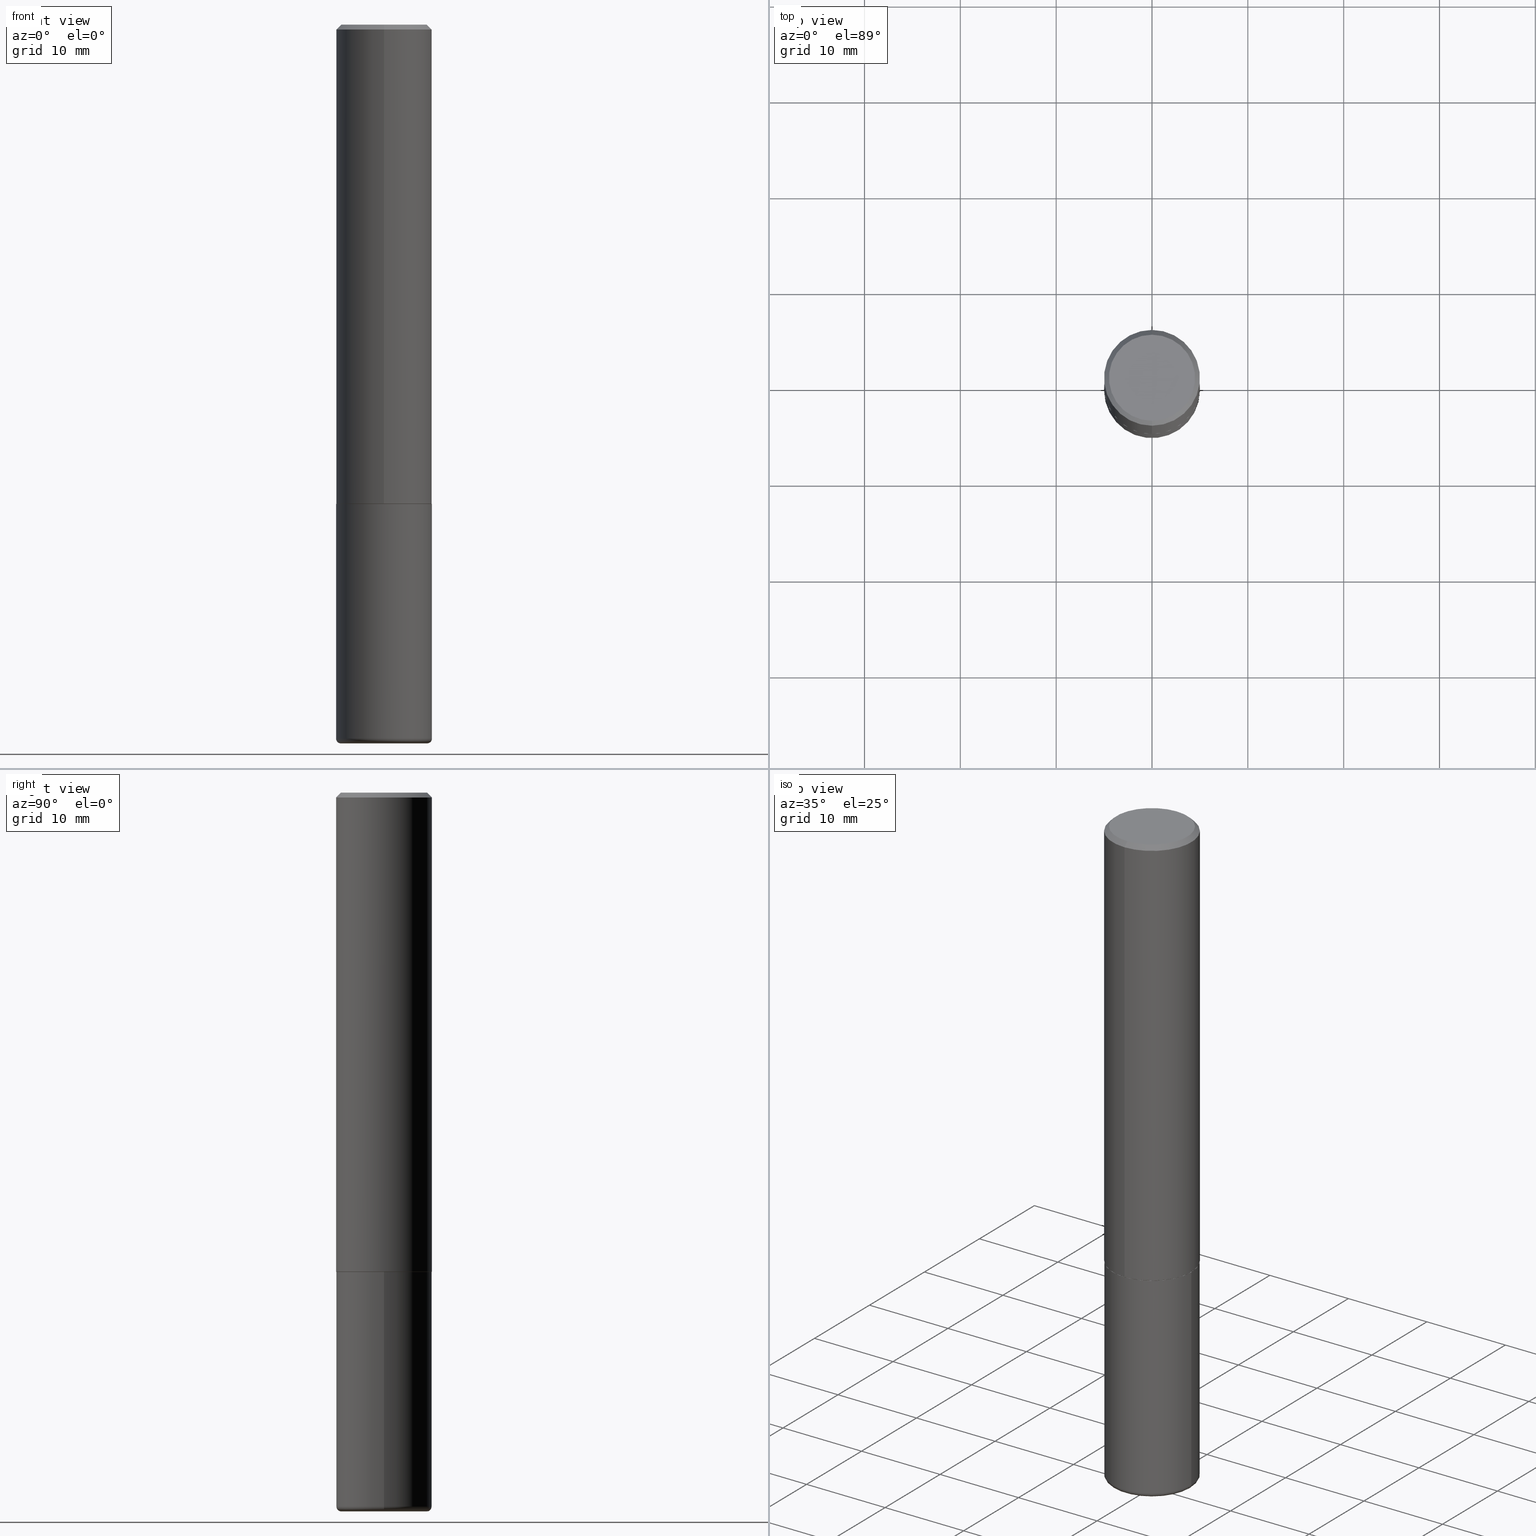
[diagram: canonical four-view strip — front | top / right | iso, engineering-drawing reading convention]
A machine part, canonical four-view strip (front | top / right | iso — engineering-drawing reading convention). The complete STEP part file that produces these views, byte-faithful:
ISO-10303-21;
HEADER;
FILE_DESCRIPTION (( 'STEP AP203' ),
    '1' );
FILE_NAME ('74402.STEP',
    '2024-03-06T15:11:28',
    ( '' ),
    ( '' ),
    'SwSTEP 2.0',
    'SolidWorks 2023',
    '' );
FILE_SCHEMA (( 'CONFIG_CONTROL_DESIGN' ));
ENDSEC;

DATA;
#1 = DIRECTION ( 'NONE',  ( -2.445468806185136597E-29, 3.491481338843145583E-15, 1.000000000000000000 ) ) ;
#2 =( NAMED_UNIT ( * ) SI_UNIT ( $, .STERADIAN. ) SOLID_ANGLE_UNIT ( ) );
#3 =( CONVERSION_BASED_UNIT ( 'INCH', #295 ) LENGTH_UNIT ( ) NAMED_UNIT ( #296 ) );
#4 = AXIS2_PLACEMENT_3D ( 'NONE', #81, #390, #257 ) ;
#5 = EDGE_CURVE ( 'NONE', #101, #399, #82, .T. ) ;
#6 = EDGE_LOOP ( 'NONE', ( #145, #100, #98, #329 ) ) ;
#7 = FACE_OUTER_BOUND ( 'NONE', #332, .T. ) ;
#8 = ORIENTED_EDGE ( 'NONE', *, *, #24, .T. ) ;
#9 = ORIENTED_EDGE ( 'NONE', *, *, #129, .T. ) ;
#10 = AXIS2_PLACEMENT_3D ( 'NONE', #293, #66, #96 ) ;
#11 = APPLICATION_CONTEXT ( 'configuration controlled 3d designs of mechanical parts and assemblies' ) ;
#12 = EDGE_LOOP ( 'NONE', ( #75, #366, #115, #410 ) ) ;
#13 = EDGE_CURVE ( 'NONE', #89, #101, #104, .T. ) ;
#14 = VECTOR ( 'NONE', #271, 39.37007874015748143 ) ;
#15 = AXIS2_PLACEMENT_3D ( 'NONE', #359, #323, #33 ) ;
#16 = ORIENTED_EDGE ( 'NONE', *, *, #247, .T. ) ;
#17 = ORIENTED_EDGE ( 'NONE', *, *, #13, .F. ) ;
#18 = DATE_AND_TIME ( #29, #41 ) ;
#19 = DIRECTION ( 'NONE',  ( -2.445268841296851437E-29, 3.491767699944464940E-15, 1.000000000000000000 ) ) ;
#20 = CIRCLE ( 'NONE', #302, 0.01969999999999989468 ) ;
#21 = PRODUCT_DEFINITION_FORMATION_WITH_SPECIFIED_SOURCE ( 'ANY', '', #51, .NOT_KNOWN. ) ;
#22 = APPROVAL_STATUS ( 'not_yet_approved' ) ;
#23 = CARTESIAN_POINT ( 'NONE',  ( 4.890537682593712927E-31, -6.983535399888942699E-17, -0.02000000000000004205 ) ) ;
#24 = EDGE_CURVE ( 'NONE', #324, #89, #79, .T. ) ;
#25 = PERSON_AND_ORGANIZATION ( #388, #246 ) ;
#26 = DIRECTION ( 'NONE',  ( -6.982962677686265922E-15, -1.000000000000000000, 3.491767699944464940E-15 ) ) ;
#27 = ORIENTED_EDGE ( 'NONE', *, *, #242, .T. ) ;
#28 = CARTESIAN_POINT ( 'NONE',  ( 0.1968499999999999417, -1.161546011806337053E-14, -2.933100000000000041 ) ) ;
#29 = CALENDAR_DATE ( 2024, 6, 3 ) ;
#30 = DIRECTION ( 'NONE',  ( -6.982962677686265922E-15, -1.000000000000000000, 4.184602492209747448E-15 ) ) ;
#31 = AXIS2_PLACEMENT_3D ( 'NONE', #183, #318, #32 ) ;
#32 = DIRECTION ( 'NONE',  ( 1.000000000000000000, -6.982962677686266711E-15, 4.876176775795935793E-29 ) ) ;
#33 = DIRECTION ( 'NONE',  ( -6.982962677686265922E-15, -1.000000000000000000, 3.491767699944464545E-15 ) ) ;
#34 = CC_DESIGN_DATE_AND_TIME_ASSIGNMENT ( #18, #83, ( #122 ) ) ;
#35 = DIRECTION ( 'NONE',  ( -6.982962677686265133E-15, -1.000000000000000000, 3.491137977679279029E-15 ) ) ;
#36 = CIRCLE ( 'NONE', #368, 0.1771500000000000019 ) ;
#37 = FACE_OUTER_BOUND ( 'NONE', #367, .T. ) ;
#38 = ORIENTED_EDGE ( 'NONE', *, *, #398, .F. ) ;
#39 = AXIS2_PLACEMENT_3D ( 'NONE', #109, #337, #270 ) ;
#40 = AXIS2_PLACEMENT_3D ( 'NONE', #347, #352, #206 ) ;
#41 = LOCAL_TIME ( 10, 11, 28.00000000000000000, #341 ) ;
#42 = CC_DESIGN_PERSON_AND_ORGANIZATION_ASSIGNMENT ( #25, #174, ( #51 ) ) ;
#43 = ORIENTED_EDGE ( 'NONE', *, *, #73, .T. ) ;
#44 = FACE_OUTER_BOUND ( 'NONE', #195, .T. ) ;
#45 = MANIFOLD_SOLID_BREP ( 'Body-Move/Copy2[1]', #53 ) ;
#46 = CIRCLE ( 'NONE', #287, 0.1958499999999999963 ) ;
#47 = AXIS2_PLACEMENT_3D ( 'NONE', #252, #1, #142 ) ;
#48 = CARTESIAN_POINT ( 'NONE',  ( 1.395150661665005404E-15, 0.1958499999999931407, -1.968500000000000583 ) ) ;
#49 = CARTESIAN_POINT ( 'NONE',  ( -1.281884050883609900E-15, -0.1768499999999998407, 8.395324101811677409E-16 ) ) ;
#50 = DIRECTION ( 'NONE',  ( -4.851104656540954809E-15, -0.7071067811865486830, -0.7071067811865462405 ) ) ;
#51 = PRODUCT ( '74402', '74402', '', ( #383 ) ) ;
#52 = FACE_OUTER_BOUND ( 'NONE', #263, .T. ) ;
#53 = CLOSED_SHELL ( 'NONE', ( #106, #186, #408, #326, #64, #222 ) ) ;
#54 = CARTESIAN_POINT ( 'NONE',  ( 0.000000000000000000, 0.000000000000000000, 0.000000000000000000 ) ) ;
#55 = CARTESIAN_POINT ( 'NONE',  ( 1.304766576325678705E-15, 0.1768499999999998407, -3.955058252891884244E-16 ) ) ;
#56 = APPROVAL_DATE_TIME ( #147, #292 ) ;
#57 = EDGE_CURVE ( 'NONE', #298, #136, #245, .T. ) ;
#58 = DIRECTION ( 'NONE',  ( -2.445468806185136597E-29, 3.491481338843145583E-15, 1.000000000000000000 ) ) ;
#59 = CARTESIAN_POINT ( 'NONE',  ( -0.1771500000000000019, -8.946540090277048352E-15, -2.952799999999999869 ) ) ;
#60 = APPROVAL_STATUS ( 'not_yet_approved' ) ;
#61 = DIRECTION ( 'NONE',  ( -2.445468806185136597E-29, 3.491481338843145583E-15, 1.000000000000000000 ) ) ;
#62 = AXIS2_PLACEMENT_3D ( 'NONE', #124, #88, #127 ) ;
#63 = CARTESIAN_POINT ( 'NONE',  ( 4.890537682593712927E-31, -6.983535399888942699E-17, -0.02000000000000004205 ) ) ;
#64 = ADVANCED_FACE ( 'NONE', ( #165 ), #265, .T. ) ;
#65 = ORIENTED_EDGE ( 'NONE', *, *, #377, .F. ) ;
#66 = DIRECTION ( 'NONE',  ( 2.438088387897960049E-29, -3.491481338843145188E-15, -1.000000000000000000 ) ) ;
#67 = AXIS2_PLACEMENT_3D ( 'NONE', #305, #107, #78 ) ;
#68 = CARTESIAN_POINT ( 'NONE',  ( 0.1968500000000000250, -8.247577218615273316E-15, -1.968499999999999694 ) ) ;
#69 = LOCAL_TIME ( 10, 11, 28.00000000000000000, #182 ) ;
#70 = DESIGN_CONTEXT ( 'detailed design', #118, 'design' ) ;
#71 = ORIENTED_EDGE ( 'NONE', *, *, #197, .T. ) ;
#72 = AXIS2_PLACEMENT_3D ( 'NONE', #114, #171, #250 ) ;
#73 = EDGE_CURVE ( 'NONE', #399, #105, #188, .T. ) ;
#74 = ORIENTED_EDGE ( 'NONE', *, *, #57, .F. ) ;
#75 = ORIENTED_EDGE ( 'NONE', *, *, #5, .F. ) ;
#76 = EDGE_LOOP ( 'NONE', ( #231, #198, #161, #154 ) ) ;
#77 = CIRCLE ( 'NONE', #40, 0.1768499999999998407 ) ;
#78 = DIRECTION ( 'NONE',  ( 6.982962677686265922E-15, 1.000000000000000000, -3.491767699944464940E-15 ) ) ;
#79 = LINE ( 'NONE', #110, #319 ) ;
#80 = DATE_AND_TIME ( #87, #69 ) ;
#81 = CARTESIAN_POINT ( 'NONE',  ( 4.813511714092851266E-29, -6.873544717340677315E-15, -1.968499999999999694 ) ) ;
#82 = LINE ( 'NONE', #85, #14 ) ;
#83 = DATE_TIME_ROLE ( 'classification_date' ) ;
#84 = DIRECTION ( 'NONE',  ( -2.445268841296851437E-29, 3.491767699944464545E-15, 1.000000000000000000 ) ) ;
#85 = CARTESIAN_POINT ( 'NONE',  ( 1.398703375343757985E-15, 0.1968500000000001360, -6.873544717340683232E-16 ) ) ;
#86 = LINE ( 'NONE', #173, #121 ) ;
#87 = CALENDAR_DATE ( 2024, 6, 3 ) ;
#88 = DIRECTION ( 'NONE',  ( 2.438088387897960049E-29, -3.491481338843145188E-15, -1.000000000000000000 ) ) ;
#89 = VERTEX_POINT ( 'NONE', #112 ) ;
#90 = COORDINATED_UNIVERSAL_TIME_OFFSET ( 5, 0, .BEHIND. ) ;
#91 = DIRECTION ( 'NONE',  ( -2.445268841296851437E-29, 3.491767699944464545E-15, 1.000000000000000000 ) ) ;
#92 = LINE ( 'NONE', #307, #372 ) ;
#93 = APPROVAL ( #289, 'UNSPECIFIED' ) ;
#94 = VERTEX_POINT ( 'NONE', #48 ) ;
#95 = AXIS2_PLACEMENT_3D ( 'NONE', #133, #131, #254 ) ;
#96 = DIRECTION ( 'NONE',  ( -1.000000000000000000, 6.982962677686265922E-15, -4.876176775795935793E-29 ) ) ;
#97 = ADVANCED_FACE ( 'NONE', ( #44 ), #405, .F. ) ;
#98 = ORIENTED_EDGE ( 'NONE', *, *, #247, .F. ) ;
#99 = CIRCLE ( 'NONE', #47, 0.1968499999999999694 ) ;
#100 = ORIENTED_EDGE ( 'NONE', *, *, #117, .T. ) ;
#101 = VERTEX_POINT ( 'NONE', #203 ) ;
#102 = EDGE_CURVE ( 'NONE', #181, #301, #20, .T. ) ;
#103 = VERTEX_POINT ( 'NONE', #49 ) ;
#104 = CIRCLE ( 'NONE', #194, 0.1968500000000002470 ) ;
#105 = VERTEX_POINT ( 'NONE', #169 ) ;
#106 = ADVANCED_FACE ( 'NONE', ( #268 ), #336, .T. ) ;
#107 = DIRECTION ( 'NONE',  ( 2.445268841296850876E-29, -3.491767699944464940E-15, -1.000000000000000000 ) ) ;
#108 = ORIENTED_EDGE ( 'NONE', *, *, #398, .T. ) ;
#109 = CARTESIAN_POINT ( 'NONE',  ( 4.890537682593712927E-31, -6.983535399888942699E-17, -0.02000000000000004205 ) ) ;
#110 = CARTESIAN_POINT ( 'NONE',  ( -1.367613240424807079E-15, -0.1958500000000068797, -1.968499999999999028 ) ) ;
#111 = AXIS2_PLACEMENT_3D ( 'NONE', #23, #414, #387 ) ;
#112 = CARTESIAN_POINT ( 'NONE',  ( -1.374596203102495065E-15, -0.1968500000000071026, -1.967499999999998916 ) ) ;
#113 = PERSON_AND_ORGANIZATION ( #388, #246 ) ;
#114 = CARTESIAN_POINT ( 'NONE',  ( 4.890537682593712927E-31, -6.983535399888942699E-17, -0.02000000000000004205 ) ) ;
#115 = ORIENTED_EDGE ( 'NONE', *, *, #331, .T. ) ;
#116 = CARTESIAN_POINT ( 'NONE',  ( 4.811066445251554069E-29, -6.870052949640732965E-15, -1.967499999999999805 ) ) ;
#117 = EDGE_CURVE ( 'NONE', #301, #369, #86, .T. ) ;
#118 = APPLICATION_CONTEXT ( 'configuration controlled 3d designs of mechanical parts and assemblies' ) ;
#119 = PERSON_AND_ORGANIZATION_ROLE ( 'classification_officer' ) ;
#120 = CARTESIAN_POINT ( 'NONE',  ( -1.367613240424807079E-15, -0.1958500000000068797, -1.968499999999999028 ) ) ;
#121 = VECTOR ( 'NONE', #210, 39.37007874015748143 ) ;
#122 = SECURITY_CLASSIFICATION ( '', '', #314 ) ;
#123 = APPROVAL_ROLE ( '' ) ;
#124 = CARTESIAN_POINT ( 'NONE',  ( 7.220980290903470182E-29, -1.030964609733603853E-14, -2.952799999999999869 ) ) ;
#125 = ORIENTED_EDGE ( 'NONE', *, *, #415, .T. ) ;
#126 = CC_DESIGN_PERSON_AND_ORGANIZATION_ASSIGNMENT ( #179, #205, ( #21 ) ) ;
#127 = DIRECTION ( 'NONE',  ( -1.000000000000000000, 6.982962677686265922E-15, -4.876176775795935793E-29 ) ) ;
#128 = DIRECTION ( 'NONE',  ( 5.024295867788490741E-15, 0.7071067811866103003, 0.7071067811864847341 ) ) ;
#129 = EDGE_CURVE ( 'NONE', #324, #94, #46, .T. ) ;
#130 = TOROIDAL_SURFACE ( 'NONE', #150, 0.1771500000000000019, 0.01969999999999987733 ) ;
#131 = DIRECTION ( 'NONE',  ( -2.445468806185136597E-29, 3.491481338843145583E-15, 1.000000000000000000 ) ) ;
#132 = ORIENTED_EDGE ( 'NONE', *, *, #277, .F. ) ;
#133 = CARTESIAN_POINT ( 'NONE',  ( 4.813905344975440714E-29, -6.872981015512730918E-15, -1.968499999999999694 ) ) ;
#134 = CC_DESIGN_DATE_AND_TIME_ASSIGNMENT ( #309, #170, ( #167 ) ) ;
#135 = VECTOR ( 'NONE', #50, 39.37007874015748854 ) ;
#136 = VERTEX_POINT ( 'NONE', #28 ) ;
#137 = LOCAL_TIME ( 10, 11, 28.00000000000000000, #90 ) ;
#138 = DIRECTION ( 'NONE',  ( 7.105427357601001859E-15, 1.000000000000000000, -3.491481338843145583E-15 ) ) ;
#139 = DIRECTION ( 'NONE',  ( -2.445468806185136597E-29, 3.491481338843145583E-15, 1.000000000000000000 ) ) ;
#140 =( GEOMETRIC_REPRESENTATION_CONTEXT ( 3 ) GLOBAL_UNCERTAINTY_ASSIGNED_CONTEXT ( ( #335 ) ) GLOBAL_UNIT_ASSIGNED_CONTEXT ( ( #3, #218, #2 ) ) REPRESENTATION_CONTEXT ( 'NONE', 'WORKASPACE' ) );
#141 = EDGE_CURVE ( 'NONE', #136, #397, #267, .T. ) ;
#142 = DIRECTION ( 'NONE',  ( 1.000000000000000000, -6.982962677686269866E-15, 0.000000000000000000 ) ) ;
#143 = PERSON_AND_ORGANIZATION ( #388, #246 ) ;
#144 = CARTESIAN_POINT ( 'NONE',  ( 0.1771500000000000019, -1.154667793568816250E-14, -2.952799999999999869 ) ) ;
#145 = ORIENTED_EDGE ( 'NONE', *, *, #264, .T. ) ;
#146 = CARTESIAN_POINT ( 'NONE',  ( 7.220980290903470182E-29, -1.030964609733603853E-14, -2.952799999999999869 ) ) ;
#147 = DATE_AND_TIME ( #417, #400 ) ;
#148 = CYLINDRICAL_SURFACE ( 'NONE', #31, 0.1968499999999999694 ) ;
#149 = VECTOR ( 'NONE', #184, 39.37007874015748143 ) ;
#150 = AXIS2_PLACEMENT_3D ( 'NONE', #353, #155, #322 ) ;
#151 = EDGE_LOOP ( 'NONE', ( #65, #71, #8, #259 ) ) ;
#152 = SHAPE_DEFINITION_REPRESENTATION ( #411, #404 ) ;
#153 = LINE ( 'NONE', #290, #135 ) ;
#154 = ORIENTED_EDGE ( 'NONE', *, *, #415, .F. ) ;
#155 = DIRECTION ( 'NONE',  ( -2.445468806185136597E-29, 3.491481338843145583E-15, 1.000000000000000000 ) ) ;
#156 = PLANE ( 'NONE',  #10 ) ;
#157 = APPROVAL_PERSON_ORGANIZATION ( #285, #93, #273 ) ;
#158 = CARTESIAN_POINT ( 'NONE',  ( 4.813511714092851266E-29, -6.873544717340677315E-15, -1.968499999999999694 ) ) ;
#159 = CARTESIAN_POINT ( 'NONE',  ( 1.391597947986204111E-15, 0.1958499999999931407, -1.968500000000000583 ) ) ;
#160 = EDGE_LOOP ( 'NONE', ( #132, #365, #108, #394 ) ) ;
#161 = ORIENTED_EDGE ( 'NONE', *, *, #141, .T. ) ;
#162 = CIRCLE ( 'NONE', #416, 0.1968500000000000250 ) ;
#163 = CARTESIAN_POINT ( 'NONE',  ( 4.811066445251554069E-29, -6.870052949640732965E-15, -1.967499999999999805 ) ) ;
#164 = EDGE_CURVE ( 'NONE', #298, #181, #395, .T. ) ;
#165 = FACE_OUTER_BOUND ( 'NONE', #221, .T. ) ;
#166 = CIRCLE ( 'NONE', #396, 0.1958499999999999963 ) ;
#167 = PRODUCT_DEFINITION ( 'UNKNOWN', '', #21, #70 ) ;
#168 = ORIENTED_EDGE ( 'NONE', *, *, #238, .F. ) ;
#169 = CARTESIAN_POINT ( 'NONE',  ( -1.350489030861325626E-15, -0.1968500000000001082, -0.01999999999999935510 ) ) ;
#170 = DATE_TIME_ROLE ( 'creation_date' ) ;
#171 = DIRECTION ( 'NONE',  ( 2.445268841296851437E-29, -3.491767699944464545E-15, -1.000000000000000000 ) ) ;
#172 = DIRECTION ( 'NONE',  ( 1.000000000000000000, -6.982962677686266711E-15, 0.000000000000000000 ) ) ;
#173 = CARTESIAN_POINT ( 'NONE',  ( -0.1968499999999999694, 1.398703375343756999E-15, -9.682923725166782276E-30 ) ) ;
#174 = PERSON_AND_ORGANIZATION_ROLE ( 'design_owner' ) ;
#175 = LINE ( 'NONE', #236, #253 ) ;
#176 = CONICAL_SURFACE ( 'NONE', #4, 0.1958499999999999963, 0.7853981633975336552 ) ;
#177 = CYLINDRICAL_SURFACE ( 'NONE', #294, 0.1968500000000001360 ) ;
#178 = DIRECTION ( 'NONE',  ( -2.445268841296851437E-29, 3.491767699944464545E-15, 1.000000000000000000 ) ) ;
#179 = PERSON_AND_ORGANIZATION ( #388, #246 ) ;
#180 = FACE_OUTER_BOUND ( 'NONE', #160, .T. ) ;
#181 = VERTEX_POINT ( 'NONE', #59 ) ;
#182 = COORDINATED_UNIVERSAL_TIME_OFFSET ( 5, 0, .BEHIND. ) ;
#183 = CARTESIAN_POINT ( 'NONE',  ( 0.000000000000000000, 0.000000000000000000, 0.000000000000000000 ) ) ;
#184 = DIRECTION ( 'NONE',  ( -2.445468806185136877E-29, 3.491481338843145188E-15, 1.000000000000000000 ) ) ;
#185 = CARTESIAN_POINT ( 'NONE',  ( 1.374596203102542200E-15, 0.1968499999999999694, -0.02000000000000072900 ) ) ;
#186 = ADVANCED_FACE ( 'NONE', ( #316 ), #130, .T. ) ;
#187 = CARTESIAN_POINT ( 'NONE',  ( -0.1968500000000000250, -7.158219089893024104E-15, -1.968499999999999694 ) ) ;
#188 = CIRCLE ( 'NONE', #39, 0.1968500000000000527 ) ;
#189 = ORIENTED_EDGE ( 'NONE', *, *, #264, .F. ) ;
#190 = DIRECTION ( 'NONE',  ( -2.445268841296850876E-29, 3.491767699944464940E-15, 1.000000000000000000 ) ) ;
#191 = CARTESIAN_POINT ( 'NONE',  ( 0.000000000000000000, 0.000000000000000000, 0.000000000000000000 ) ) ;
#192 = CC_DESIGN_PERSON_AND_ORGANIZATION_ASSIGNMENT ( #249, #213, ( #21 ) ) ;
#193 = MANIFOLD_SOLID_BREP ( 'Body-Move/Copy2[2]', #380 ) ;
#194 = AXIS2_PLACEMENT_3D ( 'NONE', #163, #269, #406 ) ;
#195 = EDGE_LOOP ( 'NONE', ( #226, #217 ) ) ;
#196 = AXIS2_PLACEMENT_3D ( 'NONE', #54, #243, #346 ) ;
#197 = EDGE_CURVE ( 'NONE', #94, #324, #166, .T. ) ;
#198 = ORIENTED_EDGE ( 'NONE', *, *, #238, .T. ) ;
#199 = ADVANCED_FACE ( 'NONE', ( #244 ), #177, .T. ) ;
#200 = DIRECTION ( 'NONE',  ( -2.445468806185136597E-29, 3.491481338843145583E-15, 1.000000000000000000 ) ) ;
#201 = AXIS2_PLACEMENT_3D ( 'NONE', #146, #248, #251 ) ;
#202 = CONICAL_SURFACE ( 'NONE', #260, 0.1958499999999999963, 0.7853981633975336552 ) ;
#203 = CARTESIAN_POINT ( 'NONE',  ( 1.398703375343782440E-15, 0.1968499999999933914, -1.967500000000000471 ) ) ;
#204 = DIRECTION ( 'NONE',  ( -6.982962677686266711E-15, -1.000000000000000000, 3.491481338843145583E-15 ) ) ;
#205 = PERSON_AND_ORGANIZATION_ROLE ( 'design_supplier' ) ;
#206 = DIRECTION ( 'NONE',  ( -6.982962677686265922E-15, -1.000000000000000000, 3.491767699944464940E-15 ) ) ;
#207 = DIRECTION ( 'NONE',  ( 1.000000000000000000, -6.982962677686267499E-15, 0.000000000000000000 ) ) ;
#208 = AXIS2_PLACEMENT_3D ( 'NONE', #63, #325, #35 ) ;
#209 = EDGE_CURVE ( 'NONE', #297, #399, #175, .T. ) ;
#210 = DIRECTION ( 'NONE',  ( -2.445468806185136877E-29, 3.491481338843145188E-15, 1.000000000000000000 ) ) ;
#211 = APPROVAL_DATE_TIME ( #80, #93 ) ;
#212 = DIRECTION ( 'NONE',  ( -6.982962677686265922E-15, -1.000000000000000000, 3.491767699944464545E-15 ) ) ;
#213 = PERSON_AND_ORGANIZATION_ROLE ( 'creator' ) ;
#214 = DIRECTION ( 'NONE',  ( 1.000000000000000000, -6.982962677686272233E-15, 0.000000000000000000 ) ) ;
#215 = DIRECTION ( 'NONE',  ( -2.445268841296851437E-29, 3.491767699944464545E-15, 1.000000000000000000 ) ) ;
#216 = CIRCLE ( 'NONE', #208, 0.1968500000000000527 ) ;
#217 = ORIENTED_EDGE ( 'NONE', *, *, #277, .T. ) ;
#218 =( NAMED_UNIT ( * ) PLANE_ANGLE_UNIT ( ) SI_UNIT ( $, .RADIAN. ) );
#219 = EDGE_CURVE ( 'NONE', #101, #89, #363, .T. ) ;
#220 = DIRECTION ( 'NONE',  ( -6.982962677686265922E-15, -1.000000000000000000, 3.491767699944464940E-15 ) ) ;
#221 = EDGE_LOOP ( 'NONE', ( #266, #27, #311, #168 ) ) ;
#222 = ADVANCED_FACE ( 'NONE', ( #389 ), #310, .T. ) ;
#223 = CONICAL_SURFACE ( 'NONE', #72, 0.1968500000000000527, 0.7853981633974466137 ) ;
#224 = ORIENTED_EDGE ( 'NONE', *, *, #327, .F. ) ;
#225 = LOCAL_TIME ( 10, 11, 28.00000000000000000, #239 ) ;
#226 = ORIENTED_EDGE ( 'NONE', *, *, #237, .T. ) ;
#227 = ORIENTED_EDGE ( 'NONE', *, *, #102, .T. ) ;
#228 = AXIS2_PLACEMENT_3D ( 'NONE', #158, #190, #220 ) ;
#229 = ORIENTED_EDGE ( 'NONE', *, *, #13, .T. ) ;
#230 = DIRECTION ( 'NONE',  ( -1.000000000000000000, 7.105427357600965571E-15, 0.000000000000000000 ) ) ;
#231 = ORIENTED_EDGE ( 'NONE', *, *, #117, .F. ) ;
#232 = AXIS2_PLACEMENT_3D ( 'NONE', #116, #91, #279 ) ;
#233 = DIRECTION ( 'NONE',  ( -4.937700262164969294E-15, -0.7071067811866054154, 0.7071067811864896191 ) ) ;
#234 = DIRECTION ( 'NONE',  ( -2.445468806185136597E-29, 3.491481338843145583E-15, 1.000000000000000000 ) ) ;
#235 = CALENDAR_DATE ( 2024, 6, 3 ) ;
#236 = CARTESIAN_POINT ( 'NONE',  ( 1.374596203102542200E-15, 0.1968499999999999694, -0.02000000000000072900 ) ) ;
#237 = EDGE_CURVE ( 'NONE', #297, #103, #77, .T. ) ;
#238 = EDGE_CURVE ( 'NONE', #301, #136, #382, .T. ) ;
#239 = COORDINATED_UNIVERSAL_TIME_OFFSET ( 5, 0, .BEHIND. ) ;
#240 = CARTESIAN_POINT ( 'NONE',  ( -5.428821863719041386E-45, 7.752188435212310874E-31, 2.220132924459896583E-16 ) ) ;
#241 = EDGE_LOOP ( 'NONE', ( #9, #276, #17, #303 ) ) ;
#242 = EDGE_CURVE ( 'NONE', #181, #298, #36, .T. ) ;
#243 = DIRECTION ( 'NONE',  ( 0.000000000000000000, 0.000000000000000000, 1.000000000000000000 ) ) ;
#244 = FACE_OUTER_BOUND ( 'NONE', #300, .T. ) ;
#245 = CIRCLE ( 'NONE', #356, 0.01969999999999989468 ) ;
#246 = ORGANIZATION ( 'UNSPECIFIED', 'UNSPECIFIED', '' ) ;
#247 = EDGE_CURVE ( 'NONE', #397, #369, #162, .T. ) ;
#248 = DIRECTION ( 'NONE',  ( -2.445468806185136597E-29, 3.491481338843145583E-15, 1.000000000000000000 ) ) ;
#249 = PERSON_AND_ORGANIZATION ( #388, #246 ) ;
#250 = DIRECTION ( 'NONE',  ( 6.982962677686265133E-15, 1.000000000000000000, -3.491137977679279029E-15 ) ) ;
#251 = DIRECTION ( 'NONE',  ( 1.000000000000000000, -6.982962677686272233E-15, 0.000000000000000000 ) ) ;
#252 = CARTESIAN_POINT ( 'NONE',  ( 7.172804555421624566E-29, -1.024086391496083050E-14, -2.933100000000000041 ) ) ;
#253 = VECTOR ( 'NONE', #339, 39.37007874015748854 ) ;
#254 = DIRECTION ( 'NONE',  ( 1.000000000000000000, -6.982962677686267499E-15, 0.000000000000000000 ) ) ;
#255 = ADVANCED_FACE ( 'NONE', ( #180 ), #223, .T. ) ;
#256 = ADVANCED_FACE ( 'NONE', ( #52 ), #407, .T. ) ;
#257 = DIRECTION ( 'NONE',  ( -6.982962677686265922E-15, -1.000000000000000000, 4.184602492209747448E-15 ) ) ;
#258 = ORIENTED_EDGE ( 'NONE', *, *, #242, .F. ) ;
#259 = ORIENTED_EDGE ( 'NONE', *, *, #219, .F. ) ;
#260 = AXIS2_PLACEMENT_3D ( 'NONE', #384, #379, #286 ) ;
#261 = ORIENTED_EDGE ( 'NONE', *, *, #197, .F. ) ;
#262 = ORIENTED_EDGE ( 'NONE', *, *, #164, .F. ) ;
#263 = EDGE_LOOP ( 'NONE', ( #224, #401, #340, #43 ) ) ;
#264 = EDGE_CURVE ( 'NONE', #136, #301, #99, .T. ) ;
#265 = TOROIDAL_SURFACE ( 'NONE', #328, 0.1771500000000000019, 0.01969999999999987733 ) ;
#266 = ORIENTED_EDGE ( 'NONE', *, *, #102, .F. ) ;
#267 = LINE ( 'NONE', #403, #149 ) ;
#268 = FACE_OUTER_BOUND ( 'NONE', #6, .T. ) ;
#269 = DIRECTION ( 'NONE',  ( -2.445268841296851437E-29, 3.491767699944464545E-15, 1.000000000000000000 ) ) ;
#270 = DIRECTION ( 'NONE',  ( -6.982962677686265133E-15, -1.000000000000000000, 3.491137977679279029E-15 ) ) ;
#271 = DIRECTION ( 'NONE',  ( -2.445268841296851437E-29, 3.491767699944464940E-15, 1.000000000000000000 ) ) ;
#272 = DIRECTION ( 'NONE',  ( 1.000000000000000000, -6.982962677686271444E-15, 4.883557194083114022E-29 ) ) ;
#273 = APPROVAL_ROLE ( '' ) ;
#274 = CIRCLE ( 'NONE', #95, 0.1968500000000000250 ) ;
#275 = FACE_OUTER_BOUND ( 'NONE', #241, .T. ) ;
#276 = ORIENTED_EDGE ( 'NONE', *, *, #377, .T. ) ;
#277 = EDGE_CURVE ( 'NONE', #103, #297, #308, .T. ) ;
#278 = DATE_AND_TIME ( #354, #225 ) ;
#279 = DIRECTION ( 'NONE',  ( -6.982962677686265922E-15, -1.000000000000000000, 4.163344669033670112E-15 ) ) ;
#280 = ADVANCED_FACE ( 'NONE', ( #412 ), #202, .T. ) ;
#281 = COORDINATED_UNIVERSAL_TIME_OFFSET ( 5, 0, .BEHIND. ) ;
#282 = CARTESIAN_POINT ( 'NONE',  ( -0.1968499999999999417, -8.842160539617071922E-15, -2.933100000000000041 ) ) ;
#283 = CC_DESIGN_PERSON_AND_ORGANIZATION_ASSIGNMENT ( #113, #374, ( #167 ) ) ;
#284 = ORIENTED_EDGE ( 'NONE', *, *, #331, .F. ) ;
#285 = PERSON_AND_ORGANIZATION ( #388, #246 ) ;
#286 = DIRECTION ( 'NONE',  ( -6.982962677686265922E-15, -1.000000000000000000, 4.184602492209747448E-15 ) ) ;
#287 = AXIS2_PLACEMENT_3D ( 'NONE', #348, #178, #313 ) ;
#288 = AXIS2_PLACEMENT_3D ( 'NONE', #350, #139, #409 ) ;
#289 = APPROVAL_STATUS ( 'not_yet_approved' ) ;
#290 = CARTESIAN_POINT ( 'NONE',  ( -1.350489030861325626E-15, -0.1968500000000001082, -0.01999999999999935510 ) ) ;
#291 = CARTESIAN_POINT ( 'NONE',  ( 4.813511714092851266E-29, -6.873544717340677315E-15, -1.968499999999999694 ) ) ;
#292 = APPROVAL ( #22, 'UNSPECIFIED' ) ;
#293 = CARTESIAN_POINT ( 'NONE',  ( 4.813905344975440714E-29, -6.872981015512730918E-15, -1.968499999999999694 ) ) ;
#294 = AXIS2_PLACEMENT_3D ( 'NONE', #418, #84, #212 ) ;
#295 = LENGTH_MEASURE_WITH_UNIT ( LENGTH_MEASURE( 0.02539999999999999897 ), #358 );
#296 = DIMENSIONAL_EXPONENTS ( 1.000000000000000000, 0.000000000000000000, 0.000000000000000000, 0.000000000000000000, 0.000000000000000000, 0.000000000000000000, 0.000000000000000000 ) ;
#297 = VERTEX_POINT ( 'NONE', #55 ) ;
#298 = VERTEX_POINT ( 'NONE', #144 ) ;
#299 = EDGE_LOOP ( 'NONE', ( #262, #258 ) ) ;
#300 = EDGE_LOOP ( 'NONE', ( #229, #371, #38, #284 ) ) ;
#301 = VERTEX_POINT ( 'NONE', #282 ) ;
#302 = AXIS2_PLACEMENT_3D ( 'NONE', #338, #138, #230 ) ;
#303 = ORIENTED_EDGE ( 'NONE', *, *, #24, .F. ) ;
#304 = CC_DESIGN_APPROVAL ( #292, ( #21 ) ) ;
#305 = CARTESIAN_POINT ( 'NONE',  ( 1.234936949548815012E-15, 0.1768499999999998407, -5.065124715121833152E-16 ) ) ;
#306 = CARTESIAN_POINT ( 'NONE',  ( 7.172804555421624566E-29, -1.024086391496083050E-14, -2.933100000000000041 ) ) ;
#307 = CARTESIAN_POINT ( 'NONE',  ( -1.374596203102542397E-15, -0.1968500000000001360, 6.873544717340683232E-16 ) ) ;
#308 = CIRCLE ( 'NONE', #320, 0.1768499999999998407 ) ;
#309 = DATE_AND_TIME ( #235, #137 ) ;
#310 = PLANE ( 'NONE',  #62 ) ;
#311 = ORIENTED_EDGE ( 'NONE', *, *, #57, .T. ) ;
#312 = DIRECTION ( 'NONE',  ( -2.445268841296851437E-29, 3.491767699944464545E-15, 1.000000000000000000 ) ) ;
#313 = DIRECTION ( 'NONE',  ( -6.982962677686265922E-15, -1.000000000000000000, 4.184602492209747448E-15 ) ) ;
#314 = SECURITY_CLASSIFICATION_LEVEL ( 'unclassified' ) ;
#315 = FACE_OUTER_BOUND ( 'NONE', #76, .T. ) ;
#316 = FACE_OUTER_BOUND ( 'NONE', #376, .T. ) ;
#317 = APPROVAL_ROLE ( '' ) ;
#318 = DIRECTION ( 'NONE',  ( -2.445468806185136597E-29, 3.491481338843145583E-15, 1.000000000000000000 ) ) ;
#319 = VECTOR ( 'NONE', #233, 39.37007874015748143 ) ;
#320 = AXIS2_PLACEMENT_3D ( 'NONE', #240, #312, #26 ) ;
#321 = CC_DESIGN_APPROVAL ( #333, ( #122 ) ) ;
#322 = DIRECTION ( 'NONE',  ( 1.000000000000000000, -6.982962677686271444E-15, 4.883557194083114022E-29 ) ) ;
#323 = DIRECTION ( 'NONE',  ( -2.445268841296851437E-29, 3.491767699944464545E-15, 1.000000000000000000 ) ) ;
#324 = VERTEX_POINT ( 'NONE', #120 ) ;
#325 = DIRECTION ( 'NONE',  ( -2.445268841296851437E-29, 3.491767699944464545E-15, 1.000000000000000000 ) ) ;
#326 = ADVANCED_FACE ( 'NONE', ( #315 ), #148, .T. ) ;
#327 = EDGE_CURVE ( 'NONE', #103, #105, #153, .T. ) ;
#328 = AXIS2_PLACEMENT_3D ( 'NONE', #306, #200, #272 ) ;
#329 = ORIENTED_EDGE ( 'NONE', *, *, #141, .F. ) ;
#330 = CYLINDRICAL_SURFACE ( 'NONE', #15, 0.1968500000000001360 ) ;
#331 = EDGE_CURVE ( 'NONE', #89, #105, #92, .T. ) ;
#332 = EDGE_LOOP ( 'NONE', ( #16, #125 ) ) ;
#333 = APPROVAL ( #60, 'UNSPECIFIED' ) ;
#334 = CC_DESIGN_SECURITY_CLASSIFICATION ( #122, ( #21 ) ) ;
#335 = UNCERTAINTY_MEASURE_WITH_UNIT (LENGTH_MEASURE( 1.000000000000000082E-05 ), #3, 'distance_accuracy_value', 'NONE');
#336 = CYLINDRICAL_SURFACE ( 'NONE', #362, 0.1968499999999999694 ) ;
#337 = DIRECTION ( 'NONE',  ( -2.445268841296851437E-29, 3.491767699944464545E-15, 1.000000000000000000 ) ) ;
#338 = CARTESIAN_POINT ( 'NONE',  ( -0.1771500000000000019, -8.982137458561812020E-15, -2.933100000000000041 ) ) ;
#339 = DIRECTION ( 'NONE',  ( 4.937700262164538576E-15, 0.7071067811865437980, -0.7071067811865511255 ) ) ;
#340 = ORIENTED_EDGE ( 'NONE', *, *, #209, .T. ) ;
#341 = COORDINATED_UNIVERSAL_TIME_OFFSET ( 5, 0, .BEHIND. ) ;
#342 = CARTESIAN_POINT ( 'NONE',  ( 7.220980290903470182E-29, -1.030964609733603853E-14, -2.952799999999999869 ) ) ;
#343 = ORIENTED_EDGE ( 'NONE', *, *, #129, .F. ) ;
#344 = ADVANCED_FACE ( 'NONE', ( #275 ), #176, .T. ) ;
#345 = APPROVAL_PERSON_ORGANIZATION ( #349, #292, #123 ) ;
#346 = DIRECTION ( 'NONE',  ( 1.000000000000000000, 0.000000000000000000, 0.000000000000000000 ) ) ;
#347 = CARTESIAN_POINT ( 'NONE',  ( -5.428821863719041386E-45, 7.752188435212310874E-31, 2.220132924459896583E-16 ) ) ;
#348 = CARTESIAN_POINT ( 'NONE',  ( 4.813511714092851266E-29, -6.873544717340677315E-15, -1.968499999999999694 ) ) ;
#349 = PERSON_AND_ORGANIZATION ( #388, #246 ) ;
#350 = CARTESIAN_POINT ( 'NONE',  ( 7.172804555421624566E-29, -1.024086391496083050E-14, -2.933100000000000041 ) ) ;
#351 = PERSON_AND_ORGANIZATION ( #388, #246 ) ;
#352 = DIRECTION ( 'NONE',  ( -2.445268841296851437E-29, 3.491767699944464545E-15, 1.000000000000000000 ) ) ;
#353 = CARTESIAN_POINT ( 'NONE',  ( 7.172804555421624566E-29, -1.024086391496083050E-14, -2.933100000000000041 ) ) ;
#354 = CALENDAR_DATE ( 2024, 6, 3 ) ;
#355 = LINE ( 'NONE', #159, #357 ) ;
#356 = AXIS2_PLACEMENT_3D ( 'NONE', #373, #204, #172 ) ;
#357 = VECTOR ( 'NONE', #128, 39.37007874015748143 ) ;
#358 =( LENGTH_UNIT ( ) NAMED_UNIT ( * ) SI_UNIT ( $, .METRE. ) );
#359 = CARTESIAN_POINT ( 'NONE',  ( 0.000000000000000000, 0.000000000000000000, 0.000000000000000000 ) ) ;
#360 = CC_DESIGN_PERSON_AND_ORGANIZATION_ASSIGNMENT ( #143, #119, ( #122 ) ) ;
#361 = FACE_OUTER_BOUND ( 'NONE', #12, .T. ) ;
#362 = AXIS2_PLACEMENT_3D ( 'NONE', #191, #234, #381 ) ;
#363 = CIRCLE ( 'NONE', #232, 0.1968500000000002470 ) ;
#364 = APPROVAL_PERSON_ORGANIZATION ( #351, #333, #317 ) ;
#365 = ORIENTED_EDGE ( 'NONE', *, *, #327, .T. ) ;
#366 = ORIENTED_EDGE ( 'NONE', *, *, #219, .T. ) ;
#367 = EDGE_LOOP ( 'NONE', ( #343, #261 ) ) ;
#368 = AXIS2_PLACEMENT_3D ( 'NONE', #342, #61, #214 ) ;
#369 = VERTEX_POINT ( 'NONE', #187 ) ;
#370 = ORIENTED_EDGE ( 'NONE', *, *, #164, .T. ) ;
#371 = ORIENTED_EDGE ( 'NONE', *, *, #5, .T. ) ;
#372 = VECTOR ( 'NONE', #19, 39.37007874015748143 ) ;
#373 = CARTESIAN_POINT ( 'NONE',  ( 0.1771500000000000019, -1.147789575331295131E-14, -2.933100000000000041 ) ) ;
#374 = PERSON_AND_ORGANIZATION_ROLE ( 'creator' ) ;
#375 = CARTESIAN_POINT ( 'NONE',  ( 4.813905344975440714E-29, -6.872981015512730918E-15, -1.968499999999999694 ) ) ;
#376 = EDGE_LOOP ( 'NONE', ( #370, #227, #189, #74 ) ) ;
#377 = EDGE_CURVE ( 'NONE', #94, #101, #355, .T. ) ;
#378 = APPROVAL_DATE_TIME ( #278, #333 ) ;
#379 = DIRECTION ( 'NONE',  ( -2.445268841296851437E-29, 3.491767699944464545E-15, 1.000000000000000000 ) ) ;
#380 = CLOSED_SHELL ( 'NONE', ( #344, #199, #255, #256, #402, #280, #385, #97 ) ) ;
#381 = DIRECTION ( 'NONE',  ( 1.000000000000000000, -6.982962677686266711E-15, 4.876176775795935793E-29 ) ) ;
#382 = CIRCLE ( 'NONE', #288, 0.1968499999999999694 ) ;
#383 = MECHANICAL_CONTEXT ( 'NONE', #11, 'mechanical' ) ;
#384 = CARTESIAN_POINT ( 'NONE',  ( 4.813511714092851266E-29, -6.873544717340677315E-15, -1.968499999999999694 ) ) ;
#385 = ADVANCED_FACE ( 'NONE', ( #37 ), #392, .F. ) ;
#386 = APPLICATION_PROTOCOL_DEFINITION ( 'international standard', 'config_control_design', 1994, #11 ) ;
#387 = DIRECTION ( 'NONE',  ( 6.982962677686265133E-15, 1.000000000000000000, -3.491137977679279029E-15 ) ) ;
#388 = PERSON ( 'UNSPECIFIED', 'UNSPECIFIED', 'UNSPECIFIED', ('UNSPECIFIED'), ('UNSPECIFIED'), ('UNSPECIFIED') ) ;
#389 = FACE_OUTER_BOUND ( 'NONE', #299, .T. ) ;
#390 = DIRECTION ( 'NONE',  ( -2.445268841296851437E-29, 3.491767699944464545E-15, 1.000000000000000000 ) ) ;
#391 = CC_DESIGN_APPROVAL ( #93, ( #167 ) ) ;
#392 = PLANE ( 'NONE',  #228 ) ;
#393 = PRODUCT_RELATED_PRODUCT_CATEGORY ( 'detail', '', ( #51 ) ) ;
#394 = ORIENTED_EDGE ( 'NONE', *, *, #209, .F. ) ;
#395 = CIRCLE ( 'NONE', #201, 0.1771500000000000019 ) ;
#396 = AXIS2_PLACEMENT_3D ( 'NONE', #291, #215, #30 ) ;
#397 = VERTEX_POINT ( 'NONE', #68 ) ;
#398 = EDGE_CURVE ( 'NONE', #105, #399, #216, .T. ) ;
#399 = VERTEX_POINT ( 'NONE', #185 ) ;
#400 = LOCAL_TIME ( 10, 11, 28.00000000000000000, #281 ) ;
#401 = ORIENTED_EDGE ( 'NONE', *, *, #237, .F. ) ;
#402 = ADVANCED_FACE ( 'NONE', ( #361 ), #330, .T. ) ;
#403 = CARTESIAN_POINT ( 'NONE',  ( 0.1968499999999999694, -1.374596203102541411E-15, 9.598753983154298056E-30 ) ) ;
#404 = ADVANCED_BREP_SHAPE_REPRESENTATION ( '74402', ( #45, #193, #196 ), #140 ) ;
#405 = PLANE ( 'NONE',  #67 ) ;
#406 = DIRECTION ( 'NONE',  ( -6.982962677686265922E-15, -1.000000000000000000, 4.163344669033670112E-15 ) ) ;
#407 = CONICAL_SURFACE ( 'NONE', #111, 0.1968500000000000527, 0.7853981633974466137 ) ;
#408 = ADVANCED_FACE ( 'NONE', ( #7 ), #156, .F. ) ;
#409 = DIRECTION ( 'NONE',  ( 1.000000000000000000, -6.982962677686269866E-15, 0.000000000000000000 ) ) ;
#410 = ORIENTED_EDGE ( 'NONE', *, *, #73, .F. ) ;
#411 = PRODUCT_DEFINITION_SHAPE ( 'NONE', 'NONE',  #167 ) ;
#412 = FACE_OUTER_BOUND ( 'NONE', #151, .T. ) ;
#413 = APPLICATION_PROTOCOL_DEFINITION ( 'international standard', 'config_control_design', 1994, #118 ) ;
#414 = DIRECTION ( 'NONE',  ( 2.445268841296851437E-29, -3.491767699944464545E-15, -1.000000000000000000 ) ) ;
#415 = EDGE_CURVE ( 'NONE', #369, #397, #274, .T. ) ;
#416 = AXIS2_PLACEMENT_3D ( 'NONE', #375, #58, #207 ) ;
#417 = CALENDAR_DATE ( 2024, 6, 3 ) ;
#418 = CARTESIAN_POINT ( 'NONE',  ( 0.000000000000000000, 0.000000000000000000, 0.000000000000000000 ) ) ;
ENDSEC;
END-ISO-10303-21;
